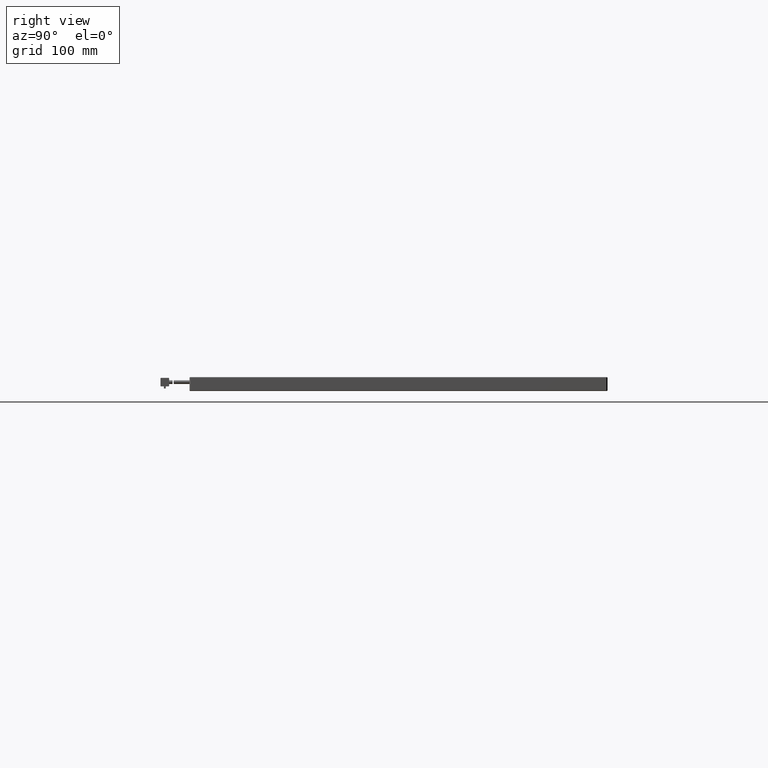
[diagram: clean part render]
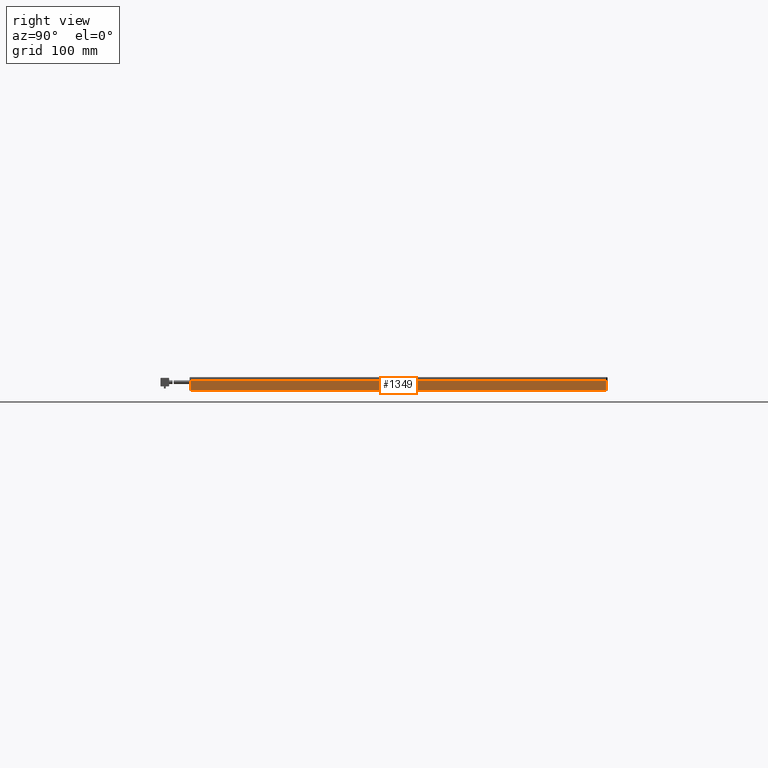
[diagram: same view with one face highlighted and labeled with its STEP entity id]
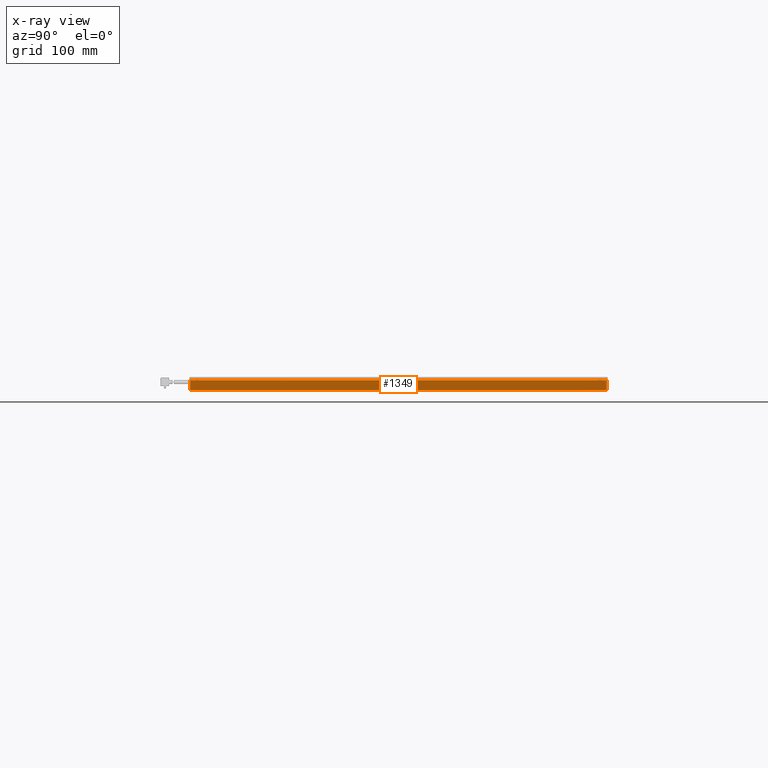
[diagram: x-ray of the same camera — body ghosted, the highlighted face saturated]
A machine part, right view. The second image highlights one B-rep face of the part: STEP entity #1349.
The next image is the same camera in x-ray: the body ghosted, the highlighted face saturated — about 0% of this face is hidden behind the body in this view.
In plain terms, the highlighted planar face has unit normal (-1, 0, 0).
Its self-contained STEP definition (entity closure, byte-faithful):
#1349 = ADVANCED_FACE ( 'NONE', ( #18530 ), #7659, .F. ) ;
#1371 = CARTESIAN_POINT ( 'NONE',  ( 283.9409559512653200, 214.7122774133082700, 10.00000000001909900 ) ) ;
#2478 = EDGE_CURVE ( 'NONE', #20904, #33362, #42356, .T. ) ;
#3735 = DIRECTION ( 'NONE',  ( 0.0000000000000000000, 0.0000000000000000000, 1.000000000000000000 ) ) ;
#7659 = PLANE ( 'NONE',  #25597 ) ;
#9292 = ORIENTED_EDGE ( 'NONE', *, *, #33641, .T. ) ;
#13146 = CARTESIAN_POINT ( 'NONE',  ( 283.9409559512653200, -174.2877225866916100, 0.5000000000189331900 ) ) ;
#14553 = CARTESIAN_POINT ( 'NONE',  ( 283.9409559512653200, 214.7122774133083300, 10.00000000001909900 ) ) ;
#16824 = VECTOR ( 'NONE', #3735, 1000.000000000000000 ) ;
#17111 = DIRECTION ( 'NONE',  ( 0.0000000000000000000, 0.0000000000000000000, 1.000000000000000000 ) ) ;
#17366 = DIRECTION ( 'NONE',  ( -0.0000000000000000000, -0.0000000000000000000, -1.000000000000000000 ) ) ;
#18530 = FACE_OUTER_BOUND ( 'NONE', #24883, .T. ) ;
#19813 = LINE ( 'NONE', #24756, #42478 ) ;
#20904 = VERTEX_POINT ( 'NONE', #39868 ) ;
#22928 = CARTESIAN_POINT ( 'NONE',  ( 283.9409559512653200, -173.2877225866916700, 10.00000000001909900 ) ) ;
#23574 = VECTOR ( 'NONE', #17366, 1000.000000000000000 ) ;
#23863 = VERTEX_POINT ( 'NONE', #22928 ) ;
#24756 = CARTESIAN_POINT ( 'NONE',  ( 283.9409559512653200, 215.7122774133083900, 10.00000000001909900 ) ) ;
#24883 = EDGE_LOOP ( 'NONE', ( #38364, #30538, #9292, #33081 ) ) ;
#25304 = DIRECTION ( 'NONE',  ( -0.0000000000000000000, -1.000000000000000000, -0.0000000000000000000 ) ) ;
#25597 = AXIS2_PLACEMENT_3D ( 'NONE', #33461, #36803, #17111 ) ;
#28725 = LINE ( 'NONE', #39214, #16824 ) ;
#30538 = ORIENTED_EDGE ( 'NONE', *, *, #42155, .F. ) ;
#33081 = ORIENTED_EDGE ( 'NONE', *, *, #37990, .F. ) ;
#33362 = VERTEX_POINT ( 'NONE', #35923 ) ;
#33461 = CARTESIAN_POINT ( 'NONE',  ( 283.9409559512653200, -174.2877225866916100, 10.00000000001909900 ) ) ;
#33534 = VECTOR ( 'NONE', #36085, 1000.000000000000000 ) ;
#33641 = EDGE_CURVE ( 'NONE', #36660, #23863, #19813, .T. ) ;
#35923 = CARTESIAN_POINT ( 'NONE',  ( 283.9409559512653200, -173.2877225866916700, 0.5000000000189331900 ) ) ;
#36085 = DIRECTION ( 'NONE',  ( -0.0000000000000000000, -1.000000000000000000, -0.0000000000000000000 ) ) ;
#36660 = VERTEX_POINT ( 'NONE', #14553 ) ;
#36803 = DIRECTION ( 'NONE',  ( -1.000000000000000000, 0.0000000000000000000, 0.0000000000000000000 ) ) ;
#37990 = EDGE_CURVE ( 'NONE', #33362, #23863, #28725, .T. ) ;
#38364 = ORIENTED_EDGE ( 'NONE', *, *, #2478, .F. ) ;
#38462 = LINE ( 'NONE', #1371, #23574 ) ;
#39214 = CARTESIAN_POINT ( 'NONE',  ( 283.9409559512653200, -173.2877225866916700, 10.00000000001909900 ) ) ;
#39868 = CARTESIAN_POINT ( 'NONE',  ( 283.9409559512653200, 214.7122774133083900, 0.5000000000189334100 ) ) ;
#42155 = EDGE_CURVE ( 'NONE', #36660, #20904, #38462, .T. ) ;
#42356 = LINE ( 'NONE', #13146, #33534 ) ;
#42478 = VECTOR ( 'NONE', #25304, 1000.000000000000000 ) ;